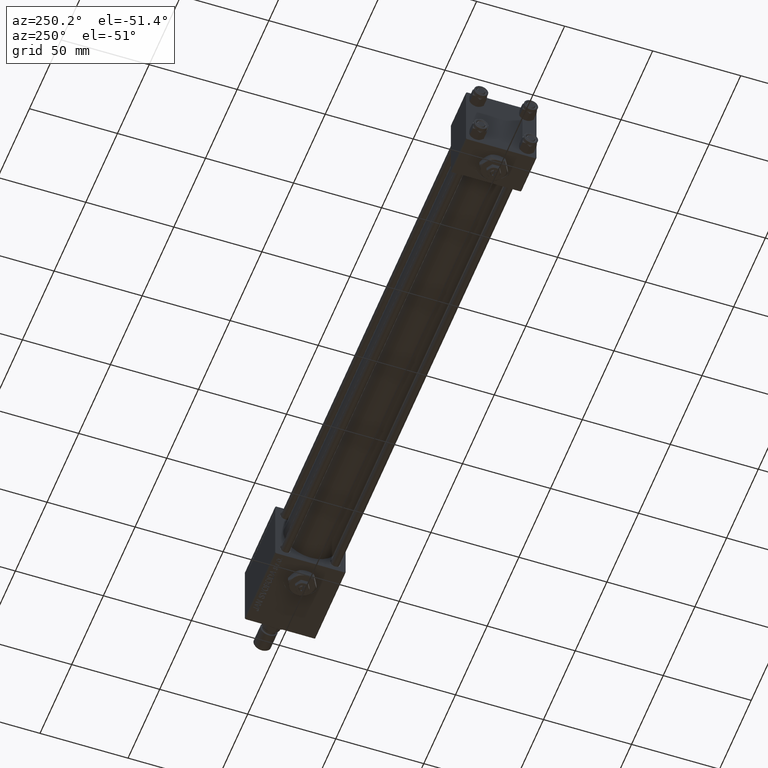
[diagram: clean part render]
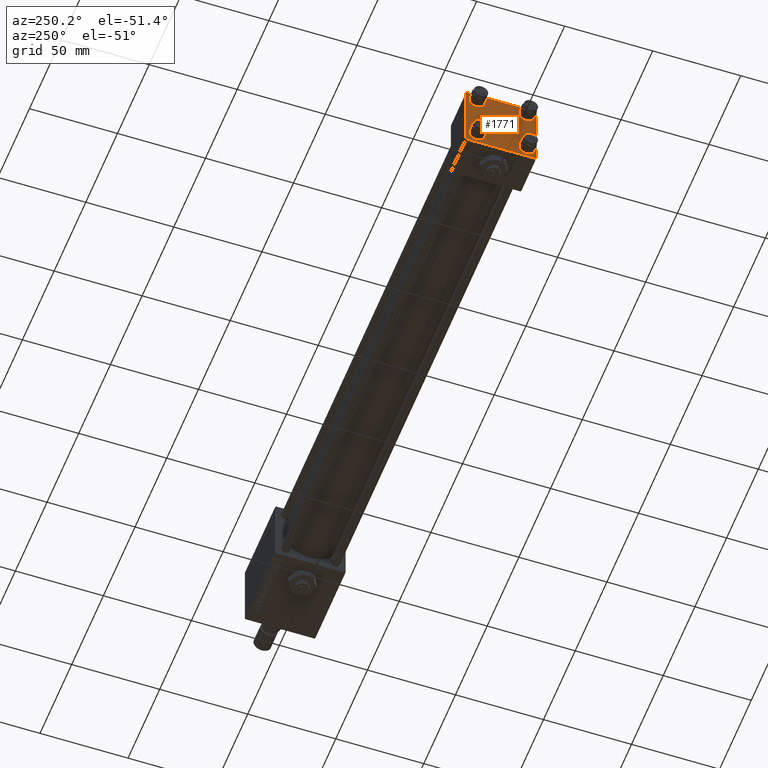
[diagram: same view with one face highlighted and labeled with its STEP entity id]
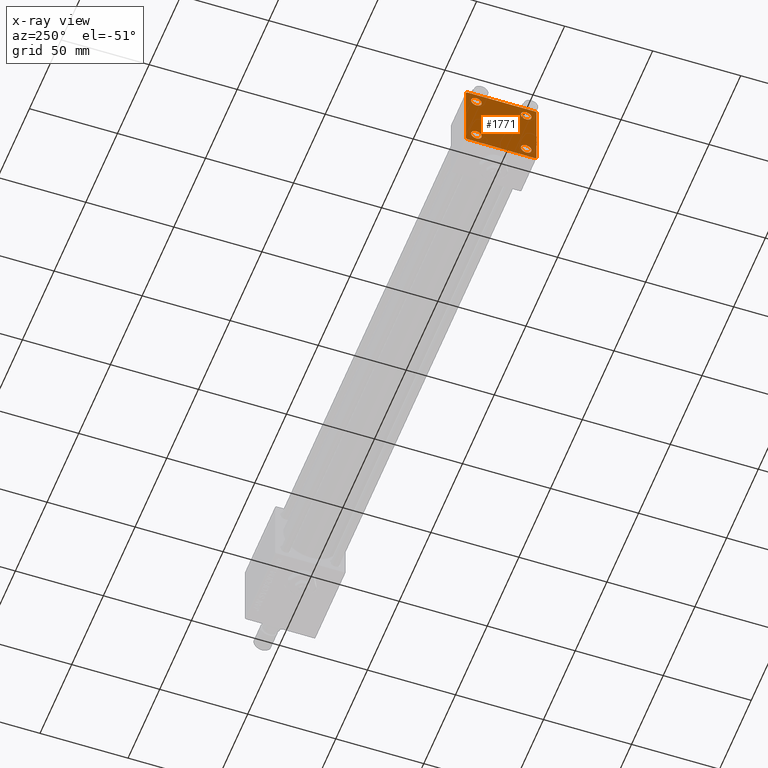
[diagram: x-ray of the same camera — body ghosted, the highlighted face saturated]
A machine part, auxiliary view. The second image highlights one B-rep face of the part: STEP entity #1771.
The next image is the same camera in x-ray: the body ghosted, the highlighted face saturated — about 0% of this face is hidden behind the body in this view.
In plain terms, the highlighted planar face has unit normal (-1, 0, 0).
Its self-contained STEP definition (entity closure, byte-faithful):
#432 = CARTESIAN_POINT ( 'NONE',  ( -0.000000000000000000, -19.74999999999992539, 19.75000000000006395 ) ) ;
#777 = EDGE_CURVE ( 'NONE', #45697, #23129, #27514, .T. ) ;
#1033 = CIRCLE ( 'NONE', #41807, 2.999999999999983569 ) ;
#1200 = ORIENTED_EDGE ( 'NONE', *, *, #6904, .T. ) ;
#1276 = EDGE_CURVE ( 'NONE', #5729, #46989, #46042, .T. ) ;
#1303 = VECTOR ( 'NONE', #37906, 1000.000000000000000 ) ;
#1771 = ADVANCED_FACE ( 'NONE', ( #46747, #23332, #6329, #38761, #19070 ), #51549, .T. ) ;
#1973 = DIRECTION ( 'NONE',  ( 0.000000000000000000, 0.000000000000000000, 1.000000000000000000 ) ) ;
#2337 = DIRECTION ( 'NONE',  ( -0.000000000000000000, 0.000000000000000000, 1.000000000000000000 ) ) ;
#2693 = LINE ( 'NONE', #6168, #11527 ) ;
#2896 = EDGE_CURVE ( 'NONE', #12215, #38879, #3468, .T. ) ;
#3219 = DIRECTION ( 'NONE',  ( 1.000000000000000000, 0.000000000000000000, 0.000000000000000000 ) ) ;
#3468 = CIRCLE ( 'NONE', #44238, 3.000000000000004441 ) ;
#3668 = AXIS2_PLACEMENT_3D ( 'NONE', #14778, #5756, #46965 ) ;
#3762 = ORIENTED_EDGE ( 'NONE', *, *, #26402, .T. ) ;
#3869 = ORIENTED_EDGE ( 'NONE', *, *, #777, .T. ) ;
#3945 = DIRECTION ( 'NONE',  ( 1.000000000000000000, 0.000000000000000000, 0.000000000000000000 ) ) ;
#4089 = CARTESIAN_POINT ( 'NONE',  ( 0.000000000000000000, 20.00000000000000000, 19.49999999999999289 ) ) ;
#4642 = CIRCLE ( 'NONE', #19931, 2.999999999999983569 ) ;
#4993 = DIRECTION ( 'NONE',  ( 0.000000000000000000, 0.000000000000000000, 1.000000000000000000 ) ) ;
#5459 = VERTEX_POINT ( 'NONE', #16929 ) ;
#5610 = CARTESIAN_POINT ( 'NONE',  ( 0.000000000000000000, 20.00000000000000000, 20.00000000000000000 ) ) ;
#5729 = VERTEX_POINT ( 'NONE', #7597 ) ;
#5756 = DIRECTION ( 'NONE',  ( 1.000000000000000000, 0.000000000000000000, 0.000000000000000000 ) ) ;
#6168 = CARTESIAN_POINT ( 'NONE',  ( -0.000000000000000000, 19.75000000000013500, 19.74999999999986144 ) ) ;
#6329 = FACE_BOUND ( 'NONE', #33578, .T. ) ;
#6904 = EDGE_CURVE ( 'NONE', #38879, #12215, #8551, .T. ) ;
#7597 = CARTESIAN_POINT ( 'NONE',  ( 0.000000000000000000, 19.50000000000000000, 20.00000000000000000 ) ) ;
#7620 = DIRECTION ( 'NONE',  ( 1.000000000000000000, 0.000000000000000000, 0.000000000000000000 ) ) ;
#7652 = VECTOR ( 'NONE', #21280, 1000.000000000000000 ) ;
#7816 = AXIS2_PLACEMENT_3D ( 'NONE', #7984, #3219, #11734 ) ;
#7984 = CARTESIAN_POINT ( 'NONE',  ( 0.000000000000000000, -14.14999999999999503, 14.15000000000000391 ) ) ;
#8493 = VECTOR ( 'NONE', #33827, 1000.000000000000000 ) ;
#8551 = CIRCLE ( 'NONE', #15347, 3.000000000000004441 ) ;
#8679 = LINE ( 'NONE', #432, #18916 ) ;
#9011 = DIRECTION ( 'NONE',  ( 0.000000000000000000, 0.000000000000000000, 1.000000000000000000 ) ) ;
#9451 = CIRCLE ( 'NONE', #23012, 2.999999999999983569 ) ;
#9468 = CARTESIAN_POINT ( 'NONE',  ( 0.000000000000000000, 20.00000000000000000, 20.00000000000000000 ) ) ;
#9530 = ORIENTED_EDGE ( 'NONE', *, *, #50513, .T. ) ;
#10118 = EDGE_CURVE ( 'NONE', #49898, #25644, #1033, .T. ) ;
#10198 = VECTOR ( 'NONE', #39748, 1000.000000000000000 ) ;
#10942 = DIRECTION ( 'NONE',  ( 0.000000000000000000, 0.000000000000000000, 1.000000000000000000 ) ) ;
#10965 = EDGE_LOOP ( 'NONE', ( #32517, #3869, #3762, #51849, #45820, #32526, #31856, #18355 ) ) ;
#11527 = VECTOR ( 'NONE', #22111, 999.9999999999998863 ) ;
#11734 = DIRECTION ( 'NONE',  ( 0.000000000000000000, 0.000000000000000000, 1.000000000000000000 ) ) ;
#11844 = CARTESIAN_POINT ( 'NONE',  ( 0.000000000000000000, -19.49999999999999289, 19.99999999999998934 ) ) ;
#11887 = DIRECTION ( 'NONE',  ( -0.000000000000000000, 0.7071067811865500152, 0.7071067811865451302 ) ) ;
#11962 = EDGE_CURVE ( 'NONE', #39850, #24463, #37974, .T. ) ;
#12204 = EDGE_LOOP ( 'NONE', ( #23510, #51919 ) ) ;
#12215 = VERTEX_POINT ( 'NONE', #41375 ) ;
#12341 = ORIENTED_EDGE ( 'NONE', *, *, #36870, .T. ) ;
#13624 = LINE ( 'NONE', #21852, #8493 ) ;
#14219 = CARTESIAN_POINT ( 'NONE',  ( 0.000000000000000000, 14.14999999999999858, 14.15000000000000036 ) ) ;
#14652 = DIRECTION ( 'NONE',  ( 1.000000000000000000, 0.000000000000000000, 0.000000000000000000 ) ) ;
#14778 = CARTESIAN_POINT ( 'NONE',  ( 0.000000000000000000, 14.14999999999999858, -14.15000000000000036 ) ) ;
#14827 = CARTESIAN_POINT ( 'NONE',  ( 0.000000000000000000, 0.000000000000000000, 0.000000000000000000 ) ) ;
#15347 = AXIS2_PLACEMENT_3D ( 'NONE', #26942, #43179, #1973 ) ;
#15387 = CARTESIAN_POINT ( 'NONE',  ( 0.000000000000000000, -19.75000000000020961, -19.74999999999979394 ) ) ;
#15893 = CARTESIAN_POINT ( 'NONE',  ( 0.000000000000000000, 14.14999999999999858, 17.14999999999998437 ) ) ;
#16929 = CARTESIAN_POINT ( 'NONE',  ( 0.000000000000000000, 14.14999999999999858, -17.14999999999998437 ) ) ;
#17111 = EDGE_CURVE ( 'NONE', #35350, #45697, #21678, .T. ) ;
#17759 = DIRECTION ( 'NONE',  ( 0.000000000000000000, 8.673617379884036705E-17, -1.000000000000000000 ) ) ;
#18355 = ORIENTED_EDGE ( 'NONE', *, *, #21170, .T. ) ;
#18842 = CARTESIAN_POINT ( 'NONE',  ( 0.000000000000000000, -20.00000000000000355, 19.49999999999998224 ) ) ;
#18916 = VECTOR ( 'NONE', #11887, 1000.000000000000114 ) ;
#19070 = FACE_OUTER_BOUND ( 'NONE', #10965, .T. ) ;
#19548 = VERTEX_POINT ( 'NONE', #15893 ) ;
#19931 = AXIS2_PLACEMENT_3D ( 'NONE', #43795, #7620, #23833 ) ;
#20142 = LINE ( 'NONE', #15387, #24155 ) ;
#21170 = EDGE_CURVE ( 'NONE', #5729, #35350, #2693, .T. ) ;
#21280 = DIRECTION ( 'NONE',  ( 0.000000000000000000, -1.000000000000000000, -2.602085213965210149E-16 ) ) ;
#21678 = LINE ( 'NONE', #9468, #1303 ) ;
#21852 = CARTESIAN_POINT ( 'NONE',  ( 0.000000000000000000, 20.00000000000000000, -20.00000000000000711 ) ) ;
#22111 = DIRECTION ( 'NONE',  ( 0.000000000000000000, 0.7071067811865425767, -0.7071067811865525687 ) ) ;
#23012 = AXIS2_PLACEMENT_3D ( 'NONE', #14219, #30425, #38148 ) ;
#23129 = VERTEX_POINT ( 'NONE', #24436 ) ;
#23332 = FACE_BOUND ( 'NONE', #42010, .T. ) ;
#23510 = ORIENTED_EDGE ( 'NONE', *, *, #29774, .T. ) ;
#23523 = CARTESIAN_POINT ( 'NONE',  ( -0.000000000000000000, 19.74999999999986855, -19.75000000000014211 ) ) ;
#23833 = DIRECTION ( 'NONE',  ( 0.000000000000000000, 0.000000000000000000, 1.000000000000000000 ) ) ;
#24155 = VECTOR ( 'NONE', #27616, 1000.000000000000000 ) ;
#24436 = CARTESIAN_POINT ( 'NONE',  ( 0.000000000000000000, 19.50000000000000711, -20.00000000000000711 ) ) ;
#24463 = VERTEX_POINT ( 'NONE', #46201 ) ;
#24825 = ORIENTED_EDGE ( 'NONE', *, *, #40298, .T. ) ;
#25644 = VERTEX_POINT ( 'NONE', #35316 ) ;
#25802 = VERTEX_POINT ( 'NONE', #38725 ) ;
#26260 = CARTESIAN_POINT ( 'NONE',  ( 0.000000000000000000, -20.00000000000000355, 19.99999999999998934 ) ) ;
#26402 = EDGE_CURVE ( 'NONE', #23129, #41076, #13624, .T. ) ;
#26584 = CIRCLE ( 'NONE', #3668, 2.999999999999983569 ) ;
#26942 = CARTESIAN_POINT ( 'NONE',  ( 0.000000000000000000, -14.14999999999999503, -14.15000000000000391 ) ) ;
#26962 = VERTEX_POINT ( 'NONE', #31211 ) ;
#27514 = LINE ( 'NONE', #23523, #10198 ) ;
#27616 = DIRECTION ( 'NONE',  ( 0.000000000000000000, -0.7071067811865401342, 0.7071067811865549002 ) ) ;
#29774 = EDGE_CURVE ( 'NONE', #25644, #49898, #31578, .T. ) ;
#30425 = DIRECTION ( 'NONE',  ( 1.000000000000000000, 0.000000000000000000, 0.000000000000000000 ) ) ;
#31211 = CARTESIAN_POINT ( 'NONE',  ( 0.000000000000000000, 14.14999999999999858, 11.15000000000001990 ) ) ;
#31578 = CIRCLE ( 'NONE', #7816, 2.999999999999983569 ) ;
#31856 = ORIENTED_EDGE ( 'NONE', *, *, #1276, .F. ) ;
#32413 = CARTESIAN_POINT ( 'NONE',  ( 0.000000000000000000, -14.14999999999999503, -14.15000000000000391 ) ) ;
#32517 = ORIENTED_EDGE ( 'NONE', *, *, #17111, .T. ) ;
#32526 = ORIENTED_EDGE ( 'NONE', *, *, #35073, .T. ) ;
#32675 = DIRECTION ( 'NONE',  ( 1.000000000000000000, 0.000000000000000000, 0.000000000000000000 ) ) ;
#32806 = EDGE_CURVE ( 'NONE', #19548, #26962, #9451, .T. ) ;
#33367 = VECTOR ( 'NONE', #17759, 1000.000000000000000 ) ;
#33578 = EDGE_LOOP ( 'NONE', ( #24825, #12341 ) ) ;
#33827 = DIRECTION ( 'NONE',  ( 0.000000000000000000, -1.000000000000000000, 1.734723475976807094E-16 ) ) ;
#34099 = EDGE_LOOP ( 'NONE', ( #35794, #9530 ) ) ;
#34760 = DIRECTION ( 'NONE',  ( -1.000000000000000000, 0.000000000000000000, -0.000000000000000000 ) ) ;
#34846 = CARTESIAN_POINT ( 'NONE',  ( 0.000000000000000000, 14.14999999999999858, 14.15000000000000036 ) ) ;
#35073 = EDGE_CURVE ( 'NONE', #39850, #46989, #8679, .T. ) ;
#35316 = CARTESIAN_POINT ( 'NONE',  ( 0.000000000000000000, -14.14999999999999503, 17.14999999999998792 ) ) ;
#35350 = VERTEX_POINT ( 'NONE', #4089 ) ;
#35460 = AXIS2_PLACEMENT_3D ( 'NONE', #34846, #14652, #10942 ) ;
#35794 = ORIENTED_EDGE ( 'NONE', *, *, #32806, .T. ) ;
#36870 = EDGE_CURVE ( 'NONE', #5459, #25802, #26584, .T. ) ;
#37367 = CARTESIAN_POINT ( 'NONE',  ( 0.000000000000000000, -19.50000000000000711, -20.00000000000000000 ) ) ;
#37906 = DIRECTION ( 'NONE',  ( 0.000000000000000000, 0.000000000000000000, -1.000000000000000000 ) ) ;
#37974 = LINE ( 'NONE', #26260, #33367 ) ;
#38148 = DIRECTION ( 'NONE',  ( 0.000000000000000000, 0.000000000000000000, 1.000000000000000000 ) ) ;
#38323 = CARTESIAN_POINT ( 'NONE',  ( 0.000000000000000000, 20.00000000000000000, -19.50000000000002132 ) ) ;
#38725 = CARTESIAN_POINT ( 'NONE',  ( 0.000000000000000000, 14.14999999999999858, -11.15000000000001812 ) ) ;
#38761 = FACE_BOUND ( 'NONE', #34099, .T. ) ;
#38879 = VERTEX_POINT ( 'NONE', #41475 ) ;
#39083 = ORIENTED_EDGE ( 'NONE', *, *, #2896, .T. ) ;
#39205 = EDGE_CURVE ( 'NONE', #41076, #24463, #20142, .T. ) ;
#39748 = DIRECTION ( 'NONE',  ( -0.000000000000000000, -0.7071067811865524577, -0.7071067811865426878 ) ) ;
#39850 = VERTEX_POINT ( 'NONE', #18842 ) ;
#40298 = EDGE_CURVE ( 'NONE', #25802, #5459, #4642, .T. ) ;
#40552 = CIRCLE ( 'NONE', #35460, 2.999999999999983569 ) ;
#40781 = AXIS2_PLACEMENT_3D ( 'NONE', #14827, #34760, #2337 ) ;
#41076 = VERTEX_POINT ( 'NONE', #37367 ) ;
#41375 = CARTESIAN_POINT ( 'NONE',  ( 0.000000000000000000, -14.14999999999999503, -17.15000000000000924 ) ) ;
#41475 = CARTESIAN_POINT ( 'NONE',  ( 0.000000000000000000, -14.14999999999999503, -11.15000000000000036 ) ) ;
#41807 = AXIS2_PLACEMENT_3D ( 'NONE', #48911, #3945, #4993 ) ;
#42010 = EDGE_LOOP ( 'NONE', ( #1200, #39083 ) ) ;
#43179 = DIRECTION ( 'NONE',  ( 1.000000000000000000, 0.000000000000000000, 0.000000000000000000 ) ) ;
#43795 = CARTESIAN_POINT ( 'NONE',  ( 0.000000000000000000, 14.14999999999999858, -14.15000000000000036 ) ) ;
#44238 = AXIS2_PLACEMENT_3D ( 'NONE', #32413, #32675, #9011 ) ;
#45697 = VERTEX_POINT ( 'NONE', #38323 ) ;
#45820 = ORIENTED_EDGE ( 'NONE', *, *, #11962, .F. ) ;
#46042 = LINE ( 'NONE', #5610, #7652 ) ;
#46201 = CARTESIAN_POINT ( 'NONE',  ( 0.000000000000000000, -20.00000000000000000, -19.49999999999999645 ) ) ;
#46747 = FACE_BOUND ( 'NONE', #12204, .T. ) ;
#46965 = DIRECTION ( 'NONE',  ( 0.000000000000000000, 0.000000000000000000, 1.000000000000000000 ) ) ;
#46989 = VERTEX_POINT ( 'NONE', #11844 ) ;
#48911 = CARTESIAN_POINT ( 'NONE',  ( 0.000000000000000000, -14.14999999999999503, 14.15000000000000391 ) ) ;
#49898 = VERTEX_POINT ( 'NONE', #52546 ) ;
#50513 = EDGE_CURVE ( 'NONE', #26962, #19548, #40552, .T. ) ;
#51549 = PLANE ( 'NONE',  #40781 ) ;
#51849 = ORIENTED_EDGE ( 'NONE', *, *, #39205, .T. ) ;
#51919 = ORIENTED_EDGE ( 'NONE', *, *, #10118, .T. ) ;
#52546 = CARTESIAN_POINT ( 'NONE',  ( 0.000000000000000000, -14.14999999999999503, 11.15000000000002345 ) ) ;